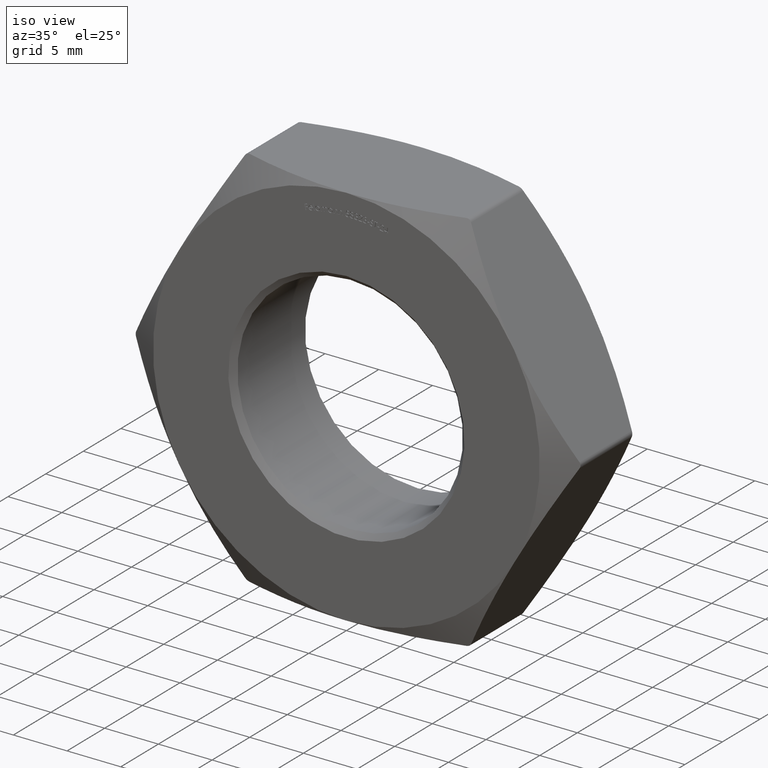
[diagram: clean part render]
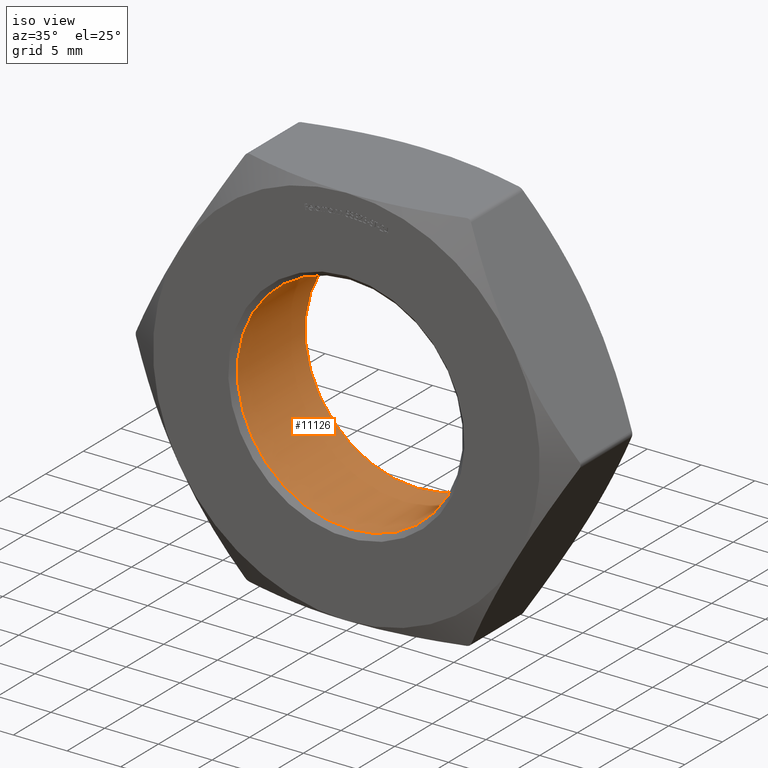
[diagram: same view with one face highlighted and labeled with its STEP entity id]
A machine part, iso view. The second image highlights one B-rep face of the part: STEP entity #11126.
In plain terms, the highlighted cylindrical surface (bore or boss wall) has radius 10.5 mm, axis along (-0, 1, -0).
Its self-contained STEP definition (entity closure, byte-faithful):
#27 = CIRCLE ( 'NONE', #12394, 10.49999999999999822 ) ;
#176 = CARTESIAN_POINT ( 'NONE',  ( 0.000000000000000000, 4.499999999999994671, 10.49999999999999822 ) ) ;
#278 = DIRECTION ( 'NONE',  ( 0.000000000000000000, 0.000000000000000000, 1.000000000000000000 ) ) ;
#759 = FACE_OUTER_BOUND ( 'NONE', #2618, .T. ) ;
#2394 = CARTESIAN_POINT ( 'NONE',  ( 0.000000000000000000, -4.500000000000007994, 10.49999999999999822 ) ) ;
#2538 = CIRCLE ( 'NONE', #14478, 10.49999999999999822 ) ;
#2618 = EDGE_LOOP ( 'NONE', ( #8993 ) ) ;
#3185 = CYLINDRICAL_SURFACE ( 'NONE', #4538, 10.49999999999999822 ) ;
#3991 = EDGE_CURVE ( 'NONE', #9877, #9877, #2538, .T. ) ;
#4496 = CARTESIAN_POINT ( 'NONE',  ( 0.000000000000000000, 4.499999999999994671, 0.000000000000000000 ) ) ;
#4538 = AXIS2_PLACEMENT_3D ( 'NONE', #7392, #6294, #278 ) ;
#5050 = FACE_OUTER_BOUND ( 'NONE', #15515, .T. ) ;
#6294 = DIRECTION ( 'NONE',  ( -0.000000000000000000, 1.000000000000000000, -0.000000000000000000 ) ) ;
#7162 = CARTESIAN_POINT ( 'NONE',  ( 0.000000000000000000, -4.500000000000007994, 0.000000000000000000 ) ) ;
#7392 = CARTESIAN_POINT ( 'NONE',  ( 0.000000000000000000, 5.000000000000000000, 0.000000000000000000 ) ) ;
#8214 = ORIENTED_EDGE ( 'NONE', *, *, #3991, .T. ) ;
#8993 = ORIENTED_EDGE ( 'NONE', *, *, #9109, .T. ) ;
#9109 = EDGE_CURVE ( 'NONE', #12733, #12733, #27, .T. ) ;
#9464 = DIRECTION ( 'NONE',  ( 0.000000000000000000, 0.000000000000000000, 1.000000000000000000 ) ) ;
#9877 = VERTEX_POINT ( 'NONE', #2394 ) ;
#11126 = ADVANCED_FACE ( 'NONE', ( #759, #5050 ), #3185, .F. ) ;
#12394 = AXIS2_PLACEMENT_3D ( 'NONE', #4496, #14102, #9464 ) ;
#12733 = VERTEX_POINT ( 'NONE', #176 ) ;
#13119 = DIRECTION ( 'NONE',  ( -0.000000000000000000, -1.000000000000000000, -0.000000000000000000 ) ) ;
#14102 = DIRECTION ( 'NONE',  ( 0.000000000000000000, 1.000000000000000000, 0.000000000000000000 ) ) ;
#14322 = DIRECTION ( 'NONE',  ( 0.000000000000000000, 0.000000000000000000, 1.000000000000000000 ) ) ;
#14478 = AXIS2_PLACEMENT_3D ( 'NONE', #7162, #13119, #14322 ) ;
#15515 = EDGE_LOOP ( 'NONE', ( #8214 ) ) ;